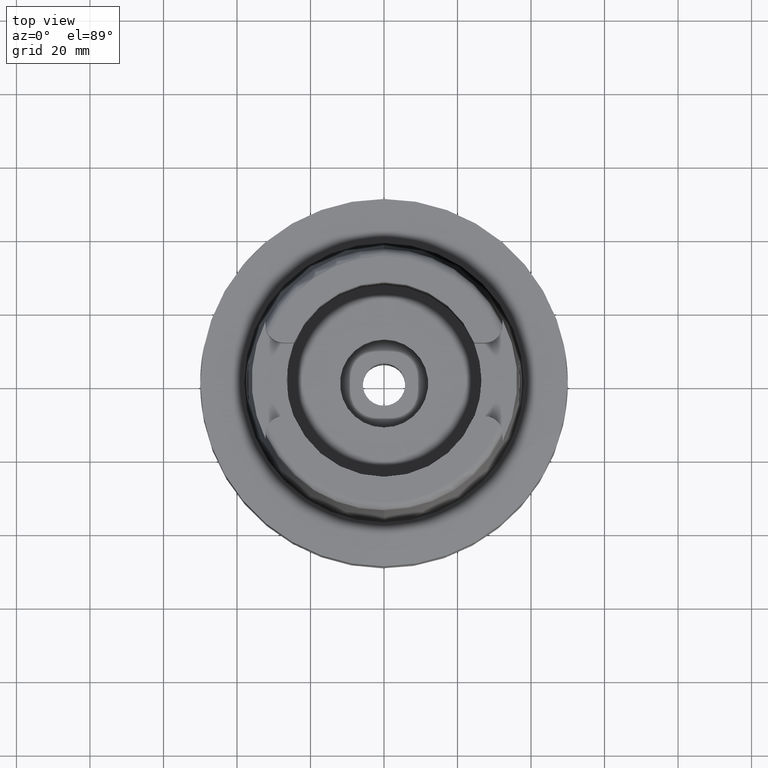
[diagram: clean part render]
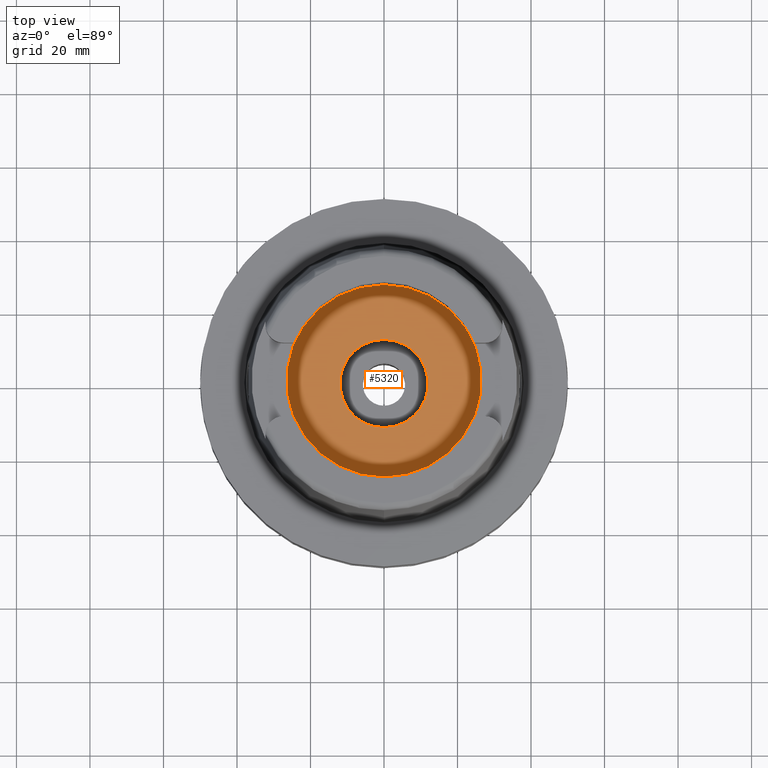
[diagram: same view with one face highlighted and labeled with its STEP entity id]
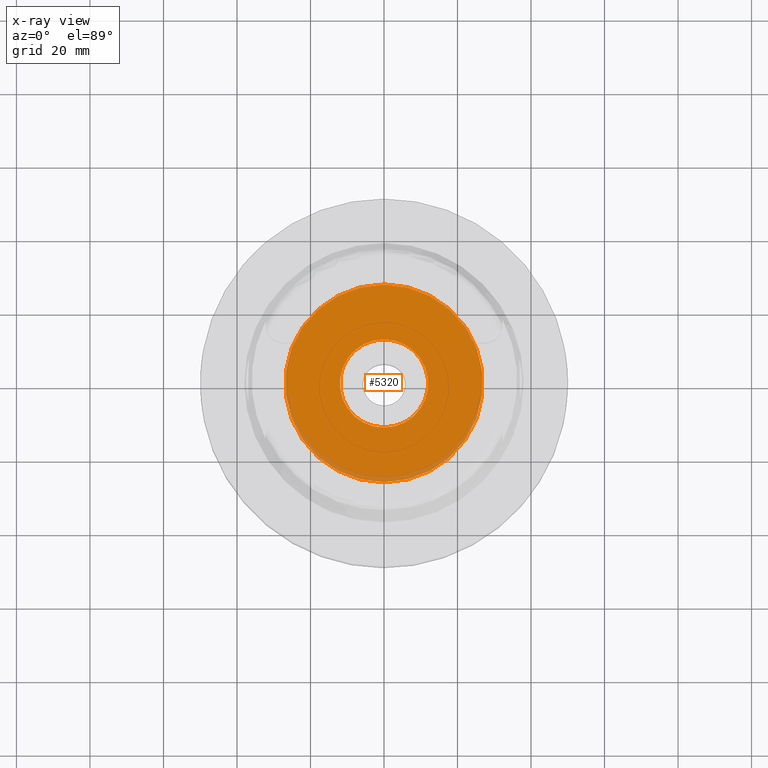
[diagram: x-ray of the same camera — body ghosted, the highlighted face saturated]
A machine part, top view. The second image highlights one B-rep face of the part: STEP entity #5320.
The next image is the same camera in x-ray: the body ghosted, the highlighted face saturated — about 5% of this face is hidden behind the body in this view.
In plain terms, the highlighted planar face has unit normal (0, 0, 1).
Its self-contained STEP definition (entity closure, byte-faithful):
#53 = VERTEX_POINT ( 'NONE', #2779 ) ;
#165 = EDGE_CURVE ( 'NONE', #4687, #2577, #4026, .T. ) ;
#404 = PLANE ( 'NONE',  #5144 ) ;
#589 = CARTESIAN_POINT ( 'NONE',  ( 0.0000000000000000000, 0.0000000000000000000, -12.44999999999999929 ) ) ;
#632 = DIRECTION ( 'NONE',  ( 0.0000000000000000000, 0.0000000000000000000, -1.000000000000000000 ) ) ;
#1019 = EDGE_LOOP ( 'NONE', ( #4716, #1708 ) ) ;
#1026 = AXIS2_PLACEMENT_3D ( 'NONE', #1989, #2437, #4179 ) ;
#1225 = CIRCLE ( 'NONE', #4320, 26.89999999999999858 ) ;
#1254 = AXIS2_PLACEMENT_3D ( 'NONE', #589, #4570, #5109 ) ;
#1258 = CIRCLE ( 'NONE', #1254, 12.00000000000000000 ) ;
#1708 = ORIENTED_EDGE ( 'NONE', *, *, #4569, .F. ) ;
#1989 = CARTESIAN_POINT ( 'NONE',  ( 0.0000000000000000000, 0.0000000000000000000, -12.44999999999999929 ) ) ;
#2358 = DIRECTION ( 'NONE',  ( 0.0000000000000000000, 1.000000000000000000, 0.0000000000000000000 ) ) ;
#2393 = DIRECTION ( 'NONE',  ( 0.0000000000000000000, -1.000000000000000000, 0.0000000000000000000 ) ) ;
#2432 = CIRCLE ( 'NONE', #2798, 26.89999999999999858 ) ;
#2437 = DIRECTION ( 'NONE',  ( 0.0000000000000000000, 0.0000000000000000000, 1.000000000000000000 ) ) ;
#2446 = DIRECTION ( 'NONE',  ( 0.0000000000000000000, 0.0000000000000000000, -1.000000000000000000 ) ) ;
#2577 = VERTEX_POINT ( 'NONE', #4516 ) ;
#2779 = CARTESIAN_POINT ( 'NONE',  ( 0.0000000000000000000, -26.89999999999999858, -12.44999999999999929 ) ) ;
#2780 = CARTESIAN_POINT ( 'NONE',  ( 0.0000000000000000000, 0.0000000000000000000, -12.44999999999999929 ) ) ;
#2798 = AXIS2_PLACEMENT_3D ( 'NONE', #2780, #632, #2358 ) ;
#2871 = CARTESIAN_POINT ( 'NONE',  ( 0.0000000000000000000, 0.0000000000000000000, -12.44999999999999929 ) ) ;
#3442 = DIRECTION ( 'NONE',  ( 1.000000000000000000, 0.0000000000000000000, 0.0000000000000000000 ) ) ;
#3479 = ORIENTED_EDGE ( 'NONE', *, *, #3811, .F. ) ;
#3543 = EDGE_CURVE ( 'NONE', #5072, #53, #2432, .T. ) ;
#3811 = EDGE_CURVE ( 'NONE', #2577, #4687, #1258, .T. ) ;
#3906 = CARTESIAN_POINT ( 'NONE',  ( 0.0000000000000000000, 26.89999999999999858, -12.44999999999999929 ) ) ;
#4026 = CIRCLE ( 'NONE', #1026, 12.00000000000000000 ) ;
#4179 = DIRECTION ( 'NONE',  ( 0.0000000000000000000, 1.000000000000000000, 0.0000000000000000000 ) ) ;
#4212 = FACE_OUTER_BOUND ( 'NONE', #1019, .T. ) ;
#4269 = DIRECTION ( 'NONE',  ( 0.0000000000000000000, 0.0000000000000000000, 1.000000000000000000 ) ) ;
#4320 = AXIS2_PLACEMENT_3D ( 'NONE', #2871, #2446, #2393 ) ;
#4516 = CARTESIAN_POINT ( 'NONE',  ( 0.0000000000000000000, -12.00000000000000000, -12.44999999999999929 ) ) ;
#4569 = EDGE_CURVE ( 'NONE', #53, #5072, #1225, .T. ) ;
#4570 = DIRECTION ( 'NONE',  ( 0.0000000000000000000, 0.0000000000000000000, 1.000000000000000000 ) ) ;
#4583 = CARTESIAN_POINT ( 'NONE',  ( 0.0000000000000000000, 12.00000000000000000, -12.44999999999999929 ) ) ;
#4648 = FACE_BOUND ( 'NONE', #4925, .T. ) ;
#4687 = VERTEX_POINT ( 'NONE', #4583 ) ;
#4716 = ORIENTED_EDGE ( 'NONE', *, *, #3543, .F. ) ;
#4925 = EDGE_LOOP ( 'NONE', ( #5250, #3479 ) ) ;
#5072 = VERTEX_POINT ( 'NONE', #3906 ) ;
#5109 = DIRECTION ( 'NONE',  ( 0.0000000000000000000, -1.000000000000000000, 0.0000000000000000000 ) ) ;
#5127 = CARTESIAN_POINT ( 'NONE',  ( 0.0000000000000000000, 0.0000000000000000000, -12.44999999999999929 ) ) ;
#5144 = AXIS2_PLACEMENT_3D ( 'NONE', #5127, #4269, #3442 ) ;
#5250 = ORIENTED_EDGE ( 'NONE', *, *, #165, .F. ) ;
#5320 = ADVANCED_FACE ( 'NONE', ( #4212, #4648 ), #404, .T. ) ;